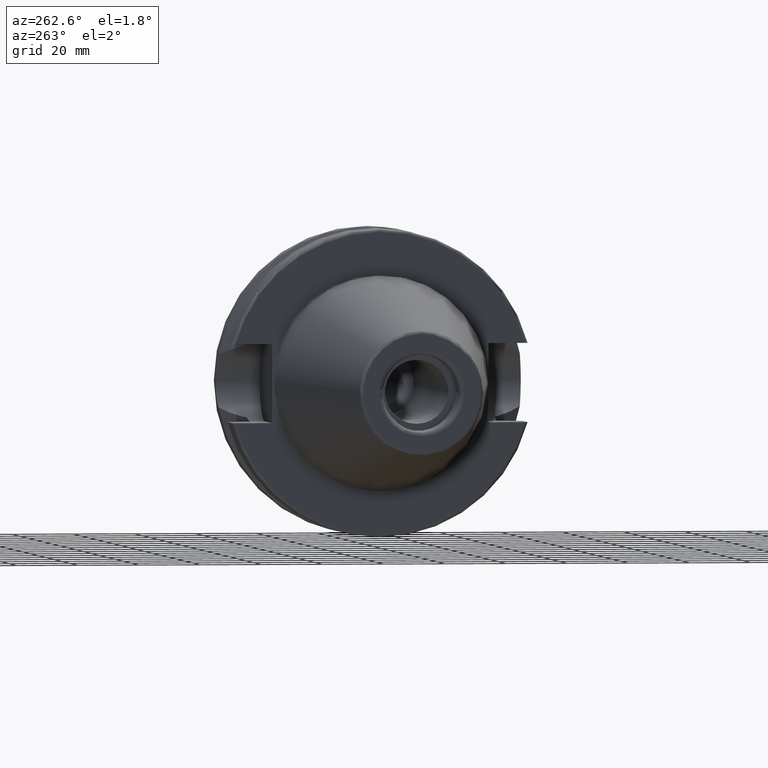
[diagram: clean part render]
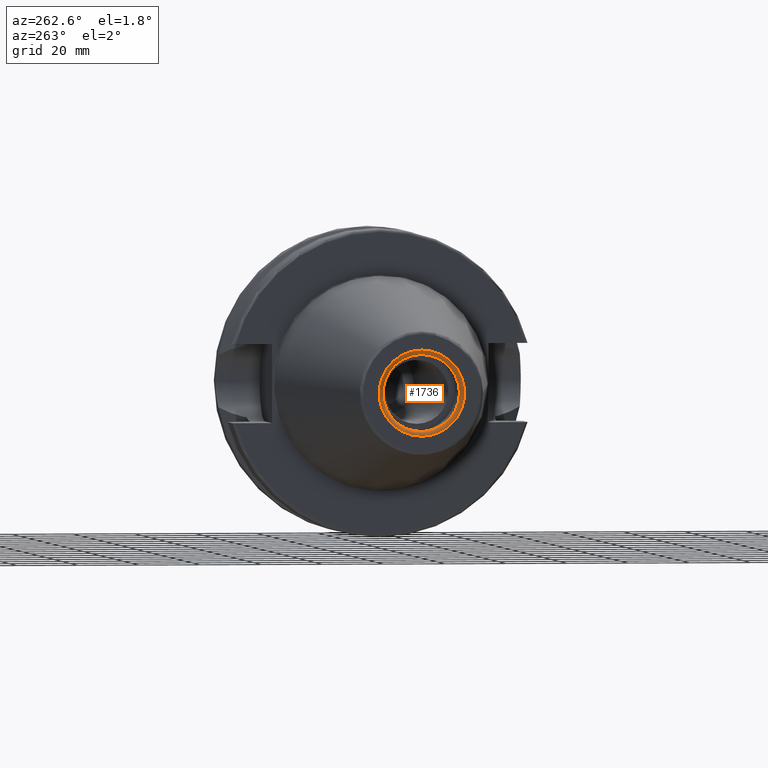
[diagram: same view with one face highlighted and labeled with its STEP entity id]
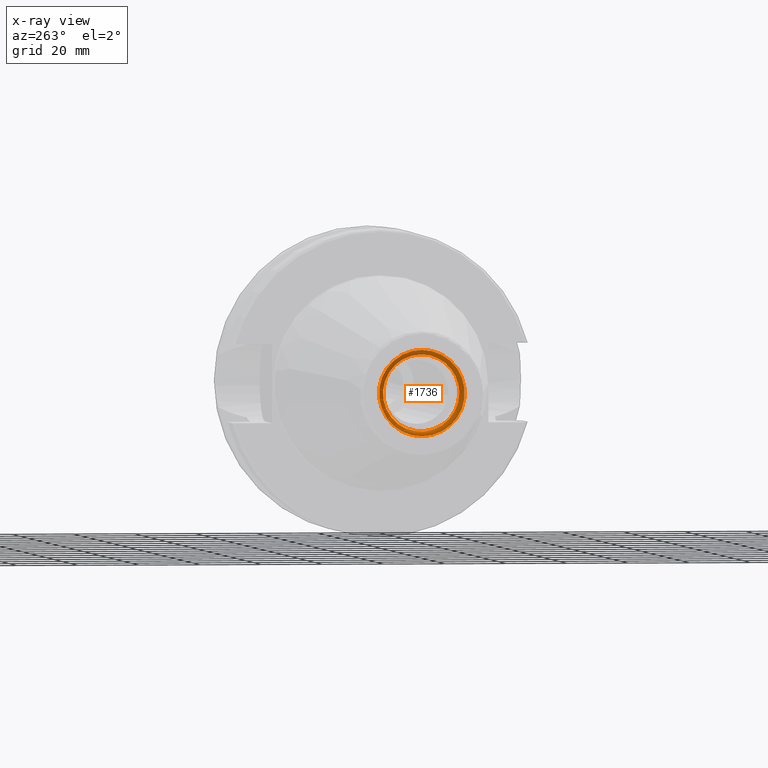
[diagram: x-ray of the same camera — body ghosted, the highlighted face saturated]
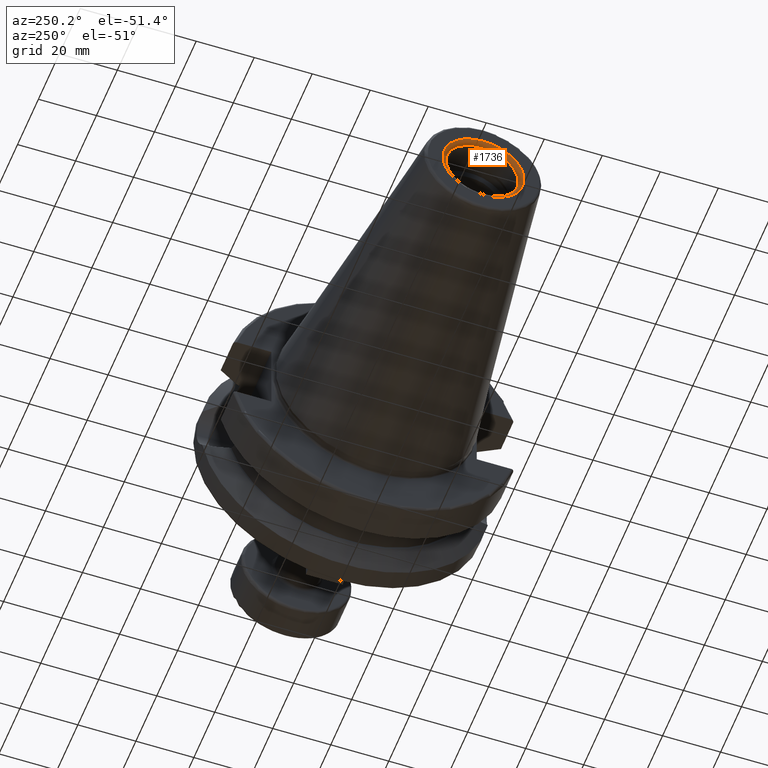
[diagram: same view with one face highlighted and labeled with its STEP entity id]
A machine part, auxiliary view. The second image highlights one B-rep face of the part: STEP entity #1736.
The next image is the same camera in x-ray: the body ghosted, the highlighted face saturated — about 0% of this face is hidden behind the body in this view.
A second angle (auxiliary view) of the same face is appended — the face is thin or edge-on in the first view.
In plain terms, the highlighted toroidal blend (fillet) surface has major radius 14 mm and minor (blend) radius 1.5 mm.
Its self-contained STEP definition (entity closure, byte-faithful):
#58=TOROIDAL_SURFACE('',#2004,14.,1.5);
#205=CIRCLE('',#2002,12.5);
#206=CIRCLE('',#2003,12.5);
#207=CIRCLE('',#2005,14.);
#208=CIRCLE('',#2006,1.5);
#306=FACE_OUTER_BOUND('',#419,.T.);
#419=EDGE_LOOP('',(#1410,#1411,#1412,#1413,#1414));
#808=VERTEX_POINT('',#3055);
#809=VERTEX_POINT('',#3057);
#810=VERTEX_POINT('',#3061);
#1020=EDGE_CURVE('',#809,#808,#205,.T.);
#1021=EDGE_CURVE('',#808,#809,#206,.T.);
#1022=EDGE_CURVE('',#810,#810,#207,.T.);
#1023=EDGE_CURVE('',#810,#809,#208,.T.);
#1410=ORIENTED_EDGE('',*,*,#1022,.F.);
#1411=ORIENTED_EDGE('',*,*,#1023,.T.);
#1412=ORIENTED_EDGE('',*,*,#1020,.T.);
#1413=ORIENTED_EDGE('',*,*,#1021,.T.);
#1414=ORIENTED_EDGE('',*,*,#1023,.F.);
#1736=ADVANCED_FACE('',(#306),#58,.T.);
#2002=AXIS2_PLACEMENT_3D('',#3058,#2400,#2401);
#2003=AXIS2_PLACEMENT_3D('',#3059,#2402,#2403);
#2004=AXIS2_PLACEMENT_3D('',#3060,#2404,#2405);
#2005=AXIS2_PLACEMENT_3D('',#3062,#2406,#2407);
#2006=AXIS2_PLACEMENT_3D('',#3063,#2408,#2409);
#2400=DIRECTION('center_axis',(1.,0.,0.));
#2401=DIRECTION('ref_axis',(0.,0.,-1.));
#2402=DIRECTION('center_axis',(1.,0.,0.));
#2403=DIRECTION('ref_axis',(0.,0.,-1.));
#2404=DIRECTION('center_axis',(1.,0.,0.));
#2405=DIRECTION('ref_axis',(0.,0.,-1.));
#2406=DIRECTION('center_axis',(1.,0.,0.));
#2407=DIRECTION('ref_axis',(0.,0.,-1.));
#2408=DIRECTION('center_axis',(0.,-1.,-1.22464679914735E-16));
#2409=DIRECTION('ref_axis',(0.,-1.22464679914735E-16,1.));
#3055=CARTESIAN_POINT('',(-100.3,-12.5,-1.53080849893419E-15));
#3057=CARTESIAN_POINT('',(-100.3,-1.53080849893419E-15,12.5));
#3058=CARTESIAN_POINT('Origin',(-100.3,0.,0.));
#3059=CARTESIAN_POINT('Origin',(-100.3,0.,0.));
#3060=CARTESIAN_POINT('Origin',(-100.3,0.,0.));
#3061=CARTESIAN_POINT('',(-101.8,-1.71450551880629E-15,14.));
#3062=CARTESIAN_POINT('Origin',(-101.8,0.,0.));
#3063=CARTESIAN_POINT('Origin',(-100.3,-1.71450551880629E-15,14.));